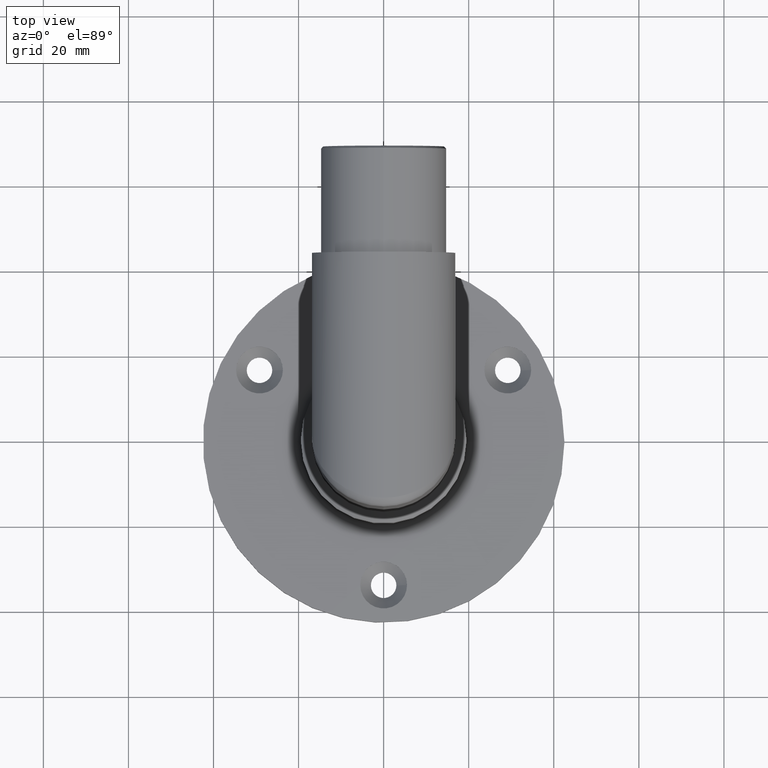
[diagram: clean part render]
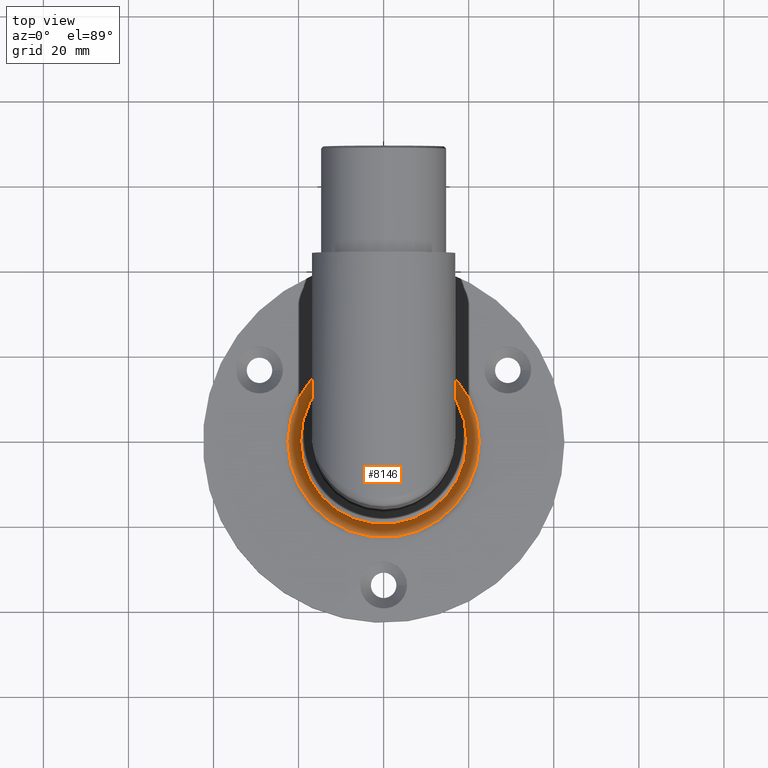
[diagram: same view with one face highlighted and labeled with its STEP entity id]
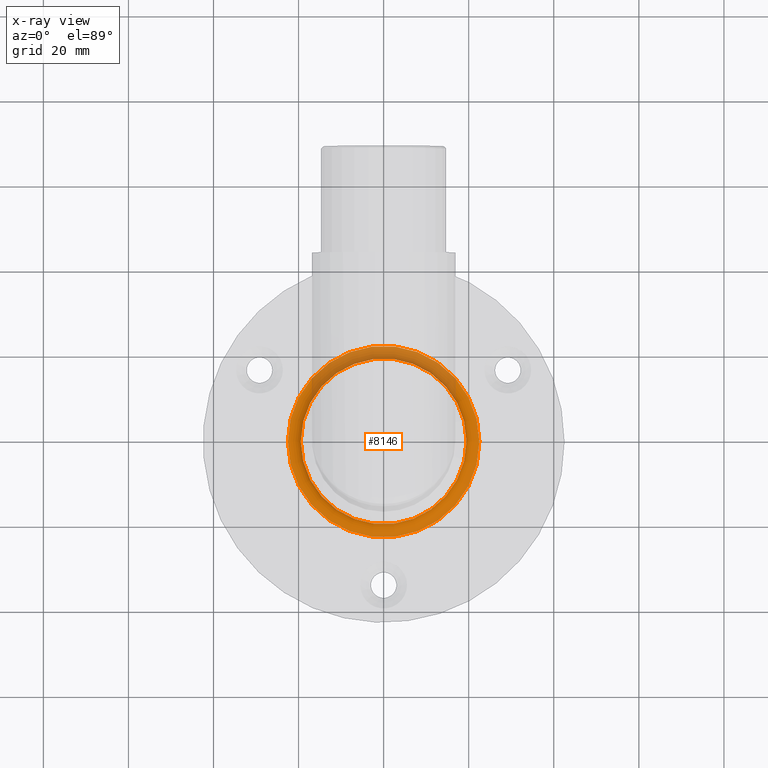
[diagram: x-ray of the same camera — body ghosted, the highlighted face saturated]
A machine part, top view. The second image highlights one B-rep face of the part: STEP entity #8146.
The next image is the same camera in x-ray: the body ghosted, the highlighted face saturated — about 30% of this face is hidden behind the body in this view.
In plain terms, the highlighted toroidal blend (fillet) surface has major radius 22.5 mm and minor (blend) radius 3 mm.
Its self-contained STEP definition (entity closure, byte-faithful):
#236 = DIRECTION ( 'NONE',  ( 0.000000000000000000, 0.000000000000000000, 1.000000000000000000 ) ) ;
#1663 = ORIENTED_EDGE ( 'NONE', *, *, #11655, .F. ) ;
#1681 = CARTESIAN_POINT ( 'NONE',  ( 19.50000000000000000, 0.000000000000000000, 8.000000000000000000 ) ) ;
#1696 = CARTESIAN_POINT ( 'NONE',  ( 0.000000000000000000, 0.000000000000000000, 5.000000000000000000 ) ) ;
#3340 = AXIS2_PLACEMENT_3D ( 'NONE', #15314, #236, #15147 ) ;
#4052 = CIRCLE ( 'NONE', #7949, 22.50000000000000000 ) ;
#5021 = EDGE_LOOP ( 'NONE', ( #1663 ) ) ;
#5478 = TOROIDAL_SURFACE ( 'NONE', #3340, 22.50000000000000000, 3.000000000000000000 ) ;
#5526 = DIRECTION ( 'NONE',  ( 0.000000000000000000, 0.000000000000000000, 1.000000000000000000 ) ) ;
#5692 = DIRECTION ( 'NONE',  ( 1.000000000000000000, 0.000000000000000000, 0.000000000000000000 ) ) ;
#6550 = VERTEX_POINT ( 'NONE', #1681 ) ;
#6984 = FACE_OUTER_BOUND ( 'NONE', #5021, .T. ) ;
#7008 = DIRECTION ( 'NONE',  ( -0.000000000000000000, -0.000000000000000000, -1.000000000000000000 ) ) ;
#7446 = EDGE_CURVE ( 'NONE', #12319, #12319, #4052, .T. ) ;
#7949 = AXIS2_PLACEMENT_3D ( 'NONE', #1696, #7008, #5692 ) ;
#8146 = ADVANCED_FACE ( 'NONE', ( #8948, #6984 ), #5478, .F. ) ;
#8948 = FACE_OUTER_BOUND ( 'NONE', #9092, .T. ) ;
#9092 = EDGE_LOOP ( 'NONE', ( #17165 ) ) ;
#9878 = CARTESIAN_POINT ( 'NONE',  ( 22.50000000000000000, 0.000000000000000000, 5.000000000000000000 ) ) ;
#11106 = CARTESIAN_POINT ( 'NONE',  ( 0.000000000000000000, 0.000000000000000000, 8.000000000000000000 ) ) ;
#11655 = EDGE_CURVE ( 'NONE', #6550, #6550, #12422, .T. ) ;
#12319 = VERTEX_POINT ( 'NONE', #9878 ) ;
#12422 = CIRCLE ( 'NONE', #14264, 19.50000000000000000 ) ;
#14264 = AXIS2_PLACEMENT_3D ( 'NONE', #11106, #5526, #15088 ) ;
#15088 = DIRECTION ( 'NONE',  ( 1.000000000000000000, 0.000000000000000000, 0.000000000000000000 ) ) ;
#15147 = DIRECTION ( 'NONE',  ( 1.000000000000000000, 0.000000000000000000, 0.000000000000000000 ) ) ;
#15314 = CARTESIAN_POINT ( 'NONE',  ( 0.000000000000000000, 0.000000000000000000, 8.000000000000000000 ) ) ;
#17165 = ORIENTED_EDGE ( 'NONE', *, *, #7446, .F. ) ;